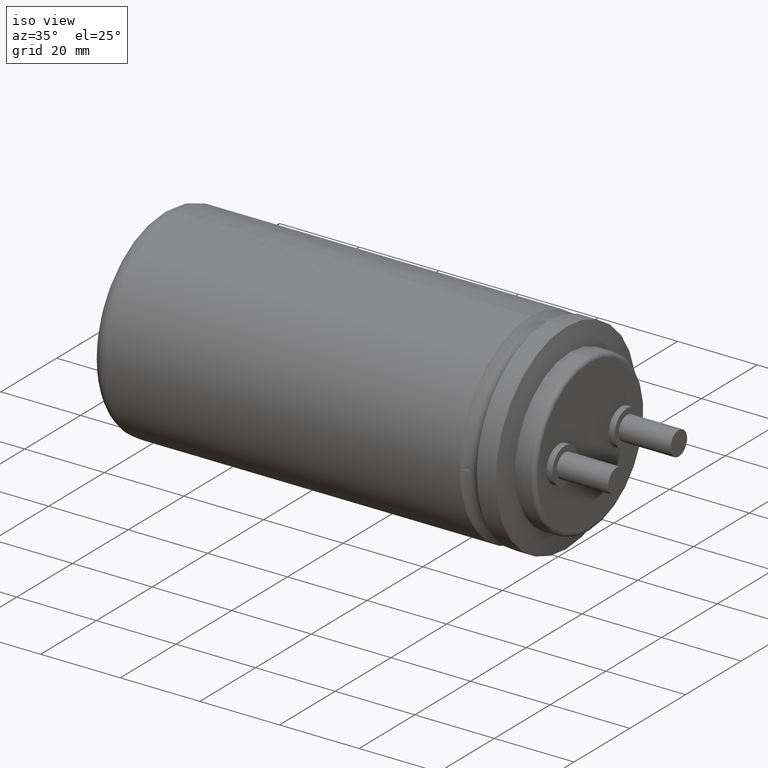
[diagram: clean part render]
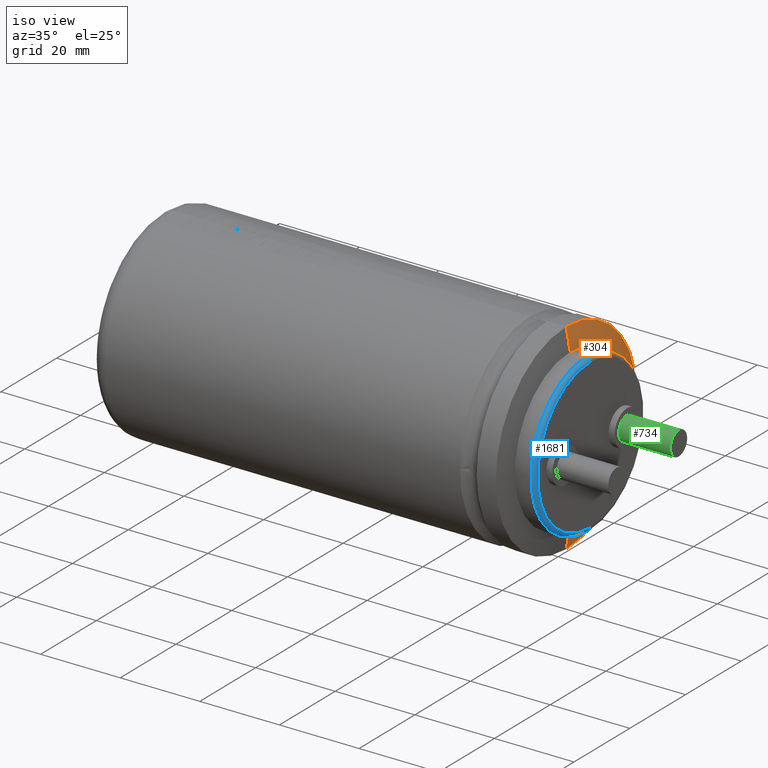
[diagram: same view with three faces highlighted in distinct colors, each labeled with its STEP entity id]
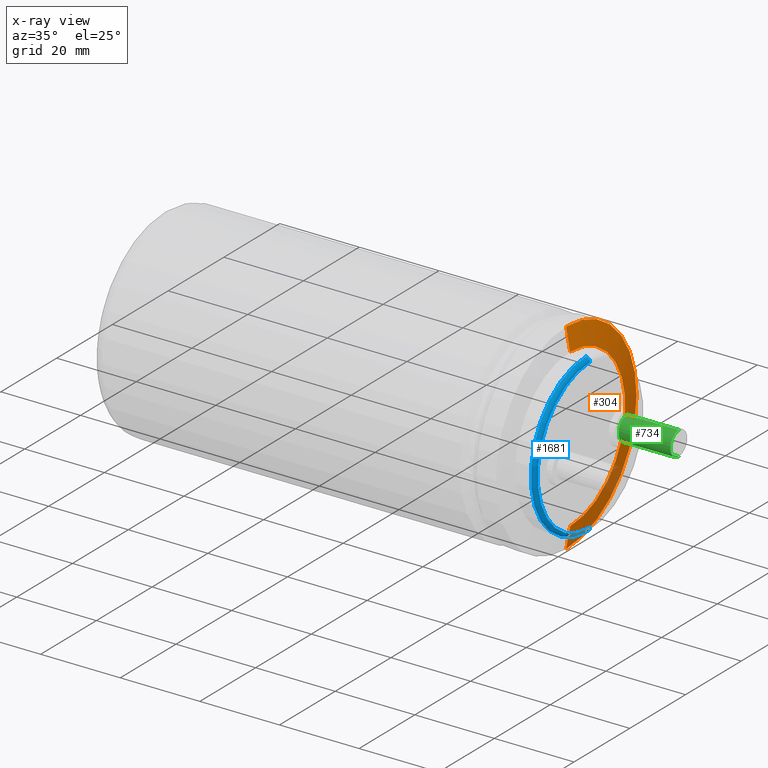
[diagram: x-ray of the same camera — body ghosted, the three highlighted faces saturated]
A machine part, iso view with three faces highlighted in distinct colors.
The next image is the same camera in x-ray (body ghosted, the three faces saturated) — at least one of them is partly hidden behind the body in this view.
Their STEP definitions:

[orange] entity #304 — the highlighted conical surface has half-angle 79.71 deg.
#20 = CARTESIAN_POINT ( 'NONE',  ( 102.0112000000000000, 3.092233167847066800E-015, -25.25000000000000000 ) ) ;
#108 = EDGE_CURVE ( 'NONE', #686, #3899, #2572, .T. ) ;
#165 = CARTESIAN_POINT ( 'NONE',  ( 102.0112000000000000, 0.0000000000000000000, 25.25000000000000000 ) ) ;
#298 = DIRECTION ( 'NONE',  ( 1.000000000000000000, -0.0000000000000000000, -0.0000000000000000000 ) ) ;
#302 = AXIS2_PLACEMENT_3D ( 'NONE', #4028, #298, #2150 ) ;
#304 = ADVANCED_FACE ( 'NONE', ( #2047 ), #664, .T. ) ;
#411 = DIRECTION ( 'NONE',  ( -1.000000000000000000, 0.0000000000000000000, 0.0000000000000000000 ) ) ;
#529 = CIRCLE ( 'NONE', #1700, 25.25000000000000000 ) ;
#597 = LINE ( 'NONE', #2222, #3307 ) ;
#664 = CONICAL_SURFACE ( 'NONE', #1479, 25.25000000000000000, 1.391202165296145500 ) ;
#686 = VERTEX_POINT ( 'NONE', #3467 ) ;
#830 = CARTESIAN_POINT ( 'NONE',  ( 102.0112000000000000, 3.092233167847066800E-015, -25.25000000000000000 ) ) ;
#991 = VECTOR ( 'NONE', #2030, 1000.000000000000000 ) ;
#1152 = EDGE_CURVE ( 'NONE', #3899, #3923, #597, .T. ) ;
#1342 = CARTESIAN_POINT ( 'NONE',  ( 102.0112000000000000, 0.0000000000000000000, 0.0000000000000000000 ) ) ;
#1479 = AXIS2_PLACEMENT_3D ( 'NONE', #1342, #411, #3867 ) ;
#1495 = VERTEX_POINT ( 'NONE', #20 ) ;
#1581 = ORIENTED_EDGE ( 'NONE', *, *, #108, .F. ) ;
#1622 = CARTESIAN_POINT ( 'NONE',  ( 103.0000000000000000, 0.0000000000000000000, 19.80357499999999900 ) ) ;
#1688 = CARTESIAN_POINT ( 'NONE',  ( 102.0112000000000000, 0.0000000000000000000, 0.0000000000000000000 ) ) ;
#1700 = AXIS2_PLACEMENT_3D ( 'NONE', #1688, #2086, #3340 ) ;
#1994 = ORIENTED_EDGE ( 'NONE', *, *, #3699, .T. ) ;
#2030 = DIRECTION ( 'NONE',  ( -0.1786302770435176900, 1.204949909285899100E-016, -0.9839162688579532500 ) ) ;
#2047 = FACE_OUTER_BOUND ( 'NONE', #3047, .T. ) ;
#2086 = DIRECTION ( 'NONE',  ( 1.000000000000000000, -0.0000000000000000000, -0.0000000000000000000 ) ) ;
#2150 = DIRECTION ( 'NONE',  ( 0.0000000000000000000, 0.0000000000000000000, -1.000000000000000000 ) ) ;
#2222 = CARTESIAN_POINT ( 'NONE',  ( 102.0112000000000000, 0.0000000000000000000, 25.25000000000000000 ) ) ;
#2257 = EDGE_CURVE ( 'NONE', #686, #1495, #2744, .T. ) ;
#2572 = CIRCLE ( 'NONE', #302, 19.80357499999999900 ) ;
#2744 = LINE ( 'NONE', #830, #991 ) ;
#3047 = EDGE_LOOP ( 'NONE', ( #1581, #4022, #1994, #3149 ) ) ;
#3149 = ORIENTED_EDGE ( 'NONE', *, *, #1152, .F. ) ;
#3307 = VECTOR ( 'NONE', #3456, 1000.000000000000000 ) ;
#3340 = DIRECTION ( 'NONE',  ( 0.0000000000000000000, 0.0000000000000000000, -1.000000000000000000 ) ) ;
#3456 = DIRECTION ( 'NONE',  ( -0.1786302770435176900, 0.0000000000000000000, 0.9839162688579532500 ) ) ;
#3467 = CARTESIAN_POINT ( 'NONE',  ( 103.0000000000000000, 2.758735820694760400E-015, -19.80357499999999900 ) ) ;
#3699 = EDGE_CURVE ( 'NONE', #1495, #3923, #529, .T. ) ;
#3867 = DIRECTION ( 'NONE',  ( 0.0000000000000000000, 0.0000000000000000000, 1.000000000000000000 ) ) ;
#3899 = VERTEX_POINT ( 'NONE', #1622 ) ;
#3923 = VERTEX_POINT ( 'NONE', #165 ) ;
#4022 = ORIENTED_EDGE ( 'NONE', *, *, #2257, .T. ) ;
#4028 = CARTESIAN_POINT ( 'NONE',  ( 103.0000000000000000, 0.0000000000000000000, 0.0000000000000000000 ) ) ;

[blue] entity #1681 — the highlighted toroidal blend (fillet) surface has major radius 18.8036 mm and minor (blend) radius 1 mm.
#52 = ORIENTED_EDGE ( 'NONE', *, *, #211, .F. ) ;
#84 = DIRECTION ( 'NONE',  ( 0.0000000000000000000, 1.224646799147353500E-016, 1.000000000000000000 ) ) ;
#127 = VERTEX_POINT ( 'NONE', #4015 ) ;
#211 = EDGE_CURVE ( 'NONE', #3370, #127, #2994, .T. ) ;
#437 = TOROIDAL_SURFACE ( 'NONE', #868, 18.80357499999999500, 1.000000000000000000 ) ;
#514 = CARTESIAN_POINT ( 'NONE',  ( 107.0000000000000000, 0.0000000000000000000, -18.80357499999999500 ) ) ;
#519 = DIRECTION ( 'NONE',  ( 1.000000000000000000, 0.0000000000000000000, 0.0000000000000000000 ) ) ;
#659 = CARTESIAN_POINT ( 'NONE',  ( 107.0000000000000000, 2.302773793627718700E-015, 18.80357499999999500 ) ) ;
#701 = DIRECTION ( 'NONE',  ( -1.000000000000000000, -0.0000000000000000000, -0.0000000000000000000 ) ) ;
#757 = VERTEX_POINT ( 'NONE', #2216 ) ;
#868 = AXIS2_PLACEMENT_3D ( 'NONE', #2264, #519, #1134 ) ;
#898 = CIRCLE ( 'NONE', #3468, 1.000000000000000900 ) ;
#1037 = ORIENTED_EDGE ( 'NONE', *, *, #3268, .T. ) ;
#1089 = CARTESIAN_POINT ( 'NONE',  ( 107.0000000000000000, 0.0000000000000000000, 0.0000000000000000000 ) ) ;
#1134 = DIRECTION ( 'NONE',  ( 0.0000000000000000000, 0.0000000000000000000, -1.000000000000000000 ) ) ;
#1149 = CIRCLE ( 'NONE', #3492, 19.80357499999999900 ) ;
#1261 = DIRECTION ( 'NONE',  ( 0.0000000000000000000, 0.0000000000000000000, -1.000000000000000000 ) ) ;
#1272 = DIRECTION ( 'NONE',  ( 1.000000000000000000, 0.0000000000000000000, 0.0000000000000000000 ) ) ;
#1345 = AXIS2_PLACEMENT_3D ( 'NONE', #3097, #1272, #1261 ) ;
#1460 = DIRECTION ( 'NONE',  ( 0.0000000000000000000, -1.000000000000000000, 0.0000000000000000000 ) ) ;
#1484 = EDGE_LOOP ( 'NONE', ( #2187, #1595, #1037, #52 ) ) ;
#1595 = ORIENTED_EDGE ( 'NONE', *, *, #2143, .F. ) ;
#1681 = ADVANCED_FACE ( 'NONE', ( #2953 ), #437, .T. ) ;
#2018 = DIRECTION ( 'NONE',  ( 0.0000000000000000000, 0.0000000000000000000, -1.000000000000000000 ) ) ;
#2123 = CARTESIAN_POINT ( 'NONE',  ( 108.0000000000000000, 2.364006133585086300E-015, 18.80357499999999500 ) ) ;
#2143 = EDGE_CURVE ( 'NONE', #3759, #757, #1149, .T. ) ;
#2187 = ORIENTED_EDGE ( 'NONE', *, *, #2455, .F. ) ;
#2216 = CARTESIAN_POINT ( 'NONE',  ( 107.0000000000000000, 0.0000000000000000000, 19.80357499999999900 ) ) ;
#2264 = CARTESIAN_POINT ( 'NONE',  ( 107.0000000000000000, 0.0000000000000000000, 0.0000000000000000000 ) ) ;
#2283 = CARTESIAN_POINT ( 'NONE',  ( 107.0000000000000000, 2.425238473542454300E-015, -19.80357499999999900 ) ) ;
#2455 = EDGE_CURVE ( 'NONE', #757, #3370, #898, .T. ) ;
#2773 = AXIS2_PLACEMENT_3D ( 'NONE', #514, #1460, #3636 ) ;
#2953 = FACE_OUTER_BOUND ( 'NONE', #1484, .T. ) ;
#2994 = CIRCLE ( 'NONE', #1345, 18.80357499999999500 ) ;
#3097 = CARTESIAN_POINT ( 'NONE',  ( 108.0000000000000000, 0.0000000000000000000, 0.0000000000000000000 ) ) ;
#3268 = EDGE_CURVE ( 'NONE', #3759, #127, #3692, .T. ) ;
#3370 = VERTEX_POINT ( 'NONE', #2123 ) ;
#3468 = AXIS2_PLACEMENT_3D ( 'NONE', #659, #3484, #84 ) ;
#3484 = DIRECTION ( 'NONE',  ( 0.0000000000000000000, 1.000000000000000000, -1.224646799147353200E-016 ) ) ;
#3492 = AXIS2_PLACEMENT_3D ( 'NONE', #1089, #701, #2018 ) ;
#3636 = DIRECTION ( 'NONE',  ( 0.0000000000000000000, 0.0000000000000000000, -1.000000000000000000 ) ) ;
#3692 = CIRCLE ( 'NONE', #2773, 1.000000000000000900 ) ;
#3759 = VERTEX_POINT ( 'NONE', #2283 ) ;
#4015 = CARTESIAN_POINT ( 'NONE',  ( 108.0000000000000000, 0.0000000000000000000, -18.80357499999999500 ) ) ;

[green] entity #734 — the highlighted cylindrical surface (edge-blend (fillet) strip) has radius 3 mm, axis along (-1, -0, -0).
#103 = EDGE_CURVE ( 'NONE', #3174, #3086, #3389, .T. ) ;
#148 = ORIENTED_EDGE ( 'NONE', *, *, #2118, .F. ) ;
#555 = CARTESIAN_POINT ( 'NONE',  ( 122.5000000000000000, 11.14999999999999700, 3.000000000000000400 ) ) ;
#561 = CARTESIAN_POINT ( 'NONE',  ( 109.5000000000000000, 11.14999999999999700, -3.000000000000000400 ) ) ;
#622 = CARTESIAN_POINT ( 'NONE',  ( 109.5000000000000000, 11.14999999999999700, 0.0000000000000000000 ) ) ;
#672 = DIRECTION ( 'NONE',  ( 0.0000000000000000000, 0.0000000000000000000, 1.000000000000000000 ) ) ;
#734 = ADVANCED_FACE ( 'NONE', ( #3150 ), #3664, .T. ) ;
#745 = CIRCLE ( 'NONE', #3262, 3.000000000000000400 ) ;
#808 = ORIENTED_EDGE ( 'NONE', *, *, #2686, .T. ) ;
#827 = CARTESIAN_POINT ( 'NONE',  ( 122.5000000000000000, 11.14999999999999700, 3.000000000000000400 ) ) ;
#1073 = CARTESIAN_POINT ( 'NONE',  ( 109.5000000000000000, 11.14999999999999700, 3.000000000000000400 ) ) ;
#1197 = DIRECTION ( 'NONE',  ( 0.0000000000000000000, 0.0000000000000000000, -1.000000000000000000 ) ) ;
#1378 = CARTESIAN_POINT ( 'NONE',  ( 122.5000000000000000, 11.14999999999999700, -3.000000000000000400 ) ) ;
#1610 = CARTESIAN_POINT ( 'NONE',  ( 122.5000000000000000, 11.14999999999999700, 0.0000000000000000000 ) ) ;
#1621 = AXIS2_PLACEMENT_3D ( 'NONE', #622, #4002, #1197 ) ;
#1909 = VECTOR ( 'NONE', #3947, 1000.000000000000000 ) ;
#1927 = DIRECTION ( 'NONE',  ( -1.000000000000000000, -0.0000000000000000000, -0.0000000000000000000 ) ) ;
#2118 = EDGE_CURVE ( 'NONE', #3285, #3944, #745, .T. ) ;
#2153 = CARTESIAN_POINT ( 'NONE',  ( 122.5000000000000000, 11.14999999999999700, 0.0000000000000000000 ) ) ;
#2163 = LINE ( 'NONE', #827, #1909 ) ;
#2165 = ORIENTED_EDGE ( 'NONE', *, *, #2484, .F. ) ;
#2465 = DIRECTION ( 'NONE',  ( 1.000000000000000000, 0.0000000000000000000, 0.0000000000000000000 ) ) ;
#2471 = ORIENTED_EDGE ( 'NONE', *, *, #103, .T. ) ;
#2484 = EDGE_CURVE ( 'NONE', #3944, #3086, #3271, .T. ) ;
#2686 = EDGE_CURVE ( 'NONE', #3285, #3174, #2163, .T. ) ;
#2767 = EDGE_LOOP ( 'NONE', ( #2165, #148, #808, #2471 ) ) ;
#3061 = DIRECTION ( 'NONE',  ( 0.0000000000000000000, 0.0000000000000000000, -1.000000000000000000 ) ) ;
#3086 = VERTEX_POINT ( 'NONE', #561 ) ;
#3150 = FACE_OUTER_BOUND ( 'NONE', #2767, .T. ) ;
#3157 = VECTOR ( 'NONE', #3773, 1000.000000000000000 ) ;
#3174 = VERTEX_POINT ( 'NONE', #1073 ) ;
#3262 = AXIS2_PLACEMENT_3D ( 'NONE', #2153, #2465, #3061 ) ;
#3271 = LINE ( 'NONE', #3753, #3157 ) ;
#3285 = VERTEX_POINT ( 'NONE', #555 ) ;
#3389 = CIRCLE ( 'NONE', #1621, 3.000000000000000400 ) ;
#3533 = AXIS2_PLACEMENT_3D ( 'NONE', #1610, #1927, #672 ) ;
#3664 = CYLINDRICAL_SURFACE ( 'NONE', #3533, 3.000000000000000400 ) ;
#3753 = CARTESIAN_POINT ( 'NONE',  ( 122.5000000000000000, 11.14999999999999700, -3.000000000000000400 ) ) ;
#3773 = DIRECTION ( 'NONE',  ( -1.000000000000000000, -0.0000000000000000000, -0.0000000000000000000 ) ) ;
#3944 = VERTEX_POINT ( 'NONE', #1378 ) ;
#3947 = DIRECTION ( 'NONE',  ( -1.000000000000000000, -0.0000000000000000000, -0.0000000000000000000 ) ) ;
#4002 = DIRECTION ( 'NONE',  ( 1.000000000000000000, 0.0000000000000000000, 0.0000000000000000000 ) ) ;